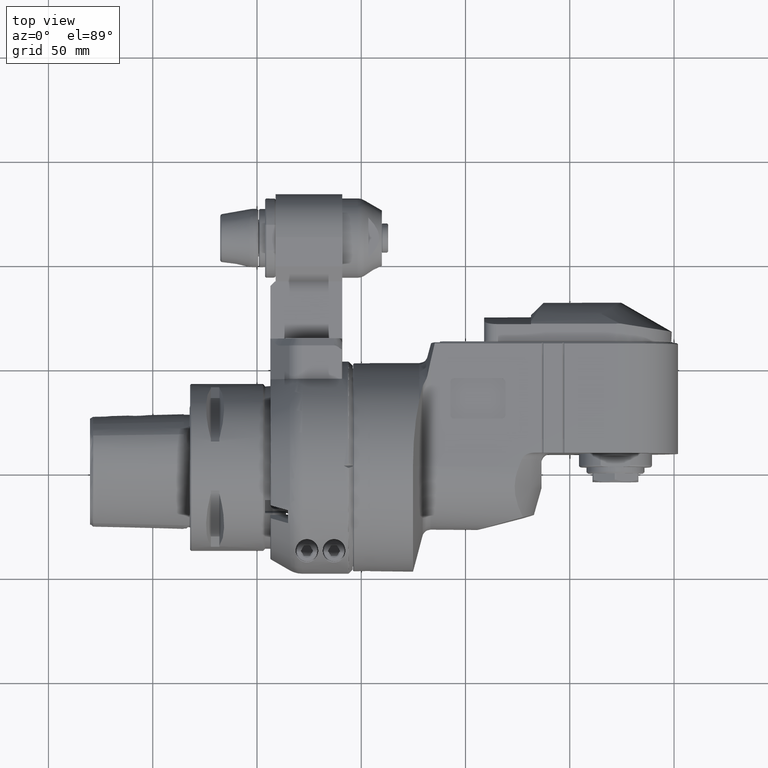
[diagram: clean part render]
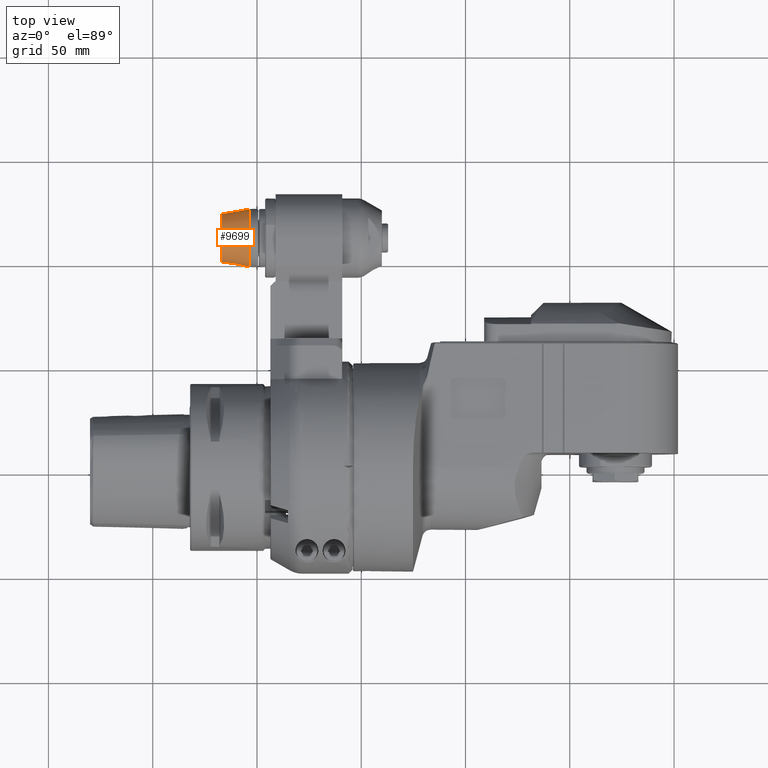
[diagram: same view with one face highlighted and labeled with its STEP entity id]
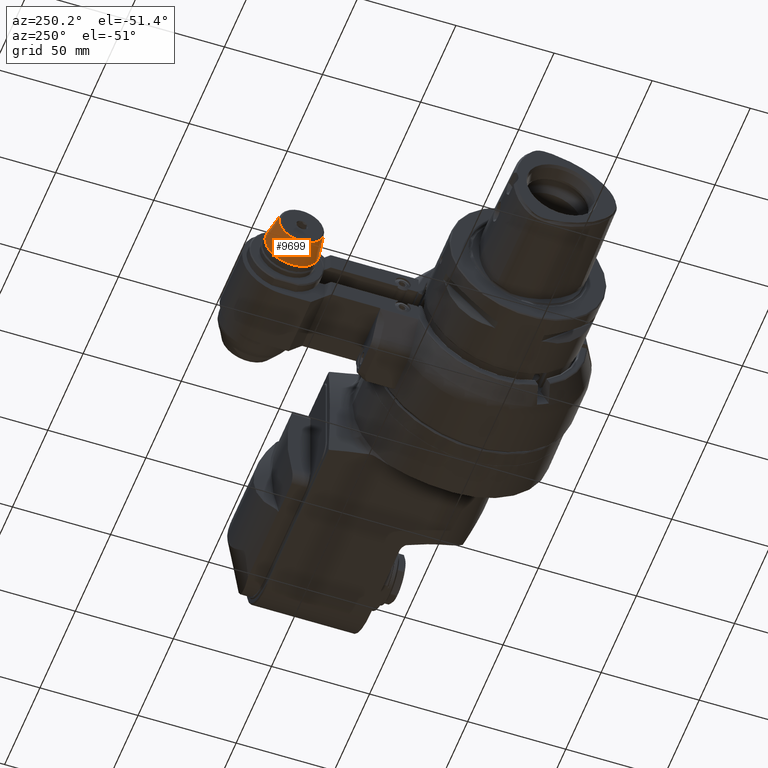
[diagram: same view with one face highlighted and labeled with its STEP entity id]
A machine part, top view. The second image highlights one B-rep face of the part: STEP entity #9699.
A second angle (auxiliary view) of the same face is appended — the face is thin or edge-on in the first view.
In plain terms, the highlighted conical surface has half-angle 10 deg.
Its self-contained STEP definition (entity closure, byte-faithful):
#385=CONICAL_SURFACE('',#10795,12.67444047067,0.174532925199433);
#1076=LINE('',#21362,#1747);
#1747=VECTOR('',#13567,12.67444047067);
#2538=FACE_OUTER_BOUND('',#3190,.T.);
#3190=EDGE_LOOP('',(#8762,#8763,#8764,#8765,#8766,#8767));
#3687=CIRCLE('',#10793,11.50080341121);
#3688=CIRCLE('',#10794,11.50080341121);
#3689=CIRCLE('',#10796,13.84807753012);
#3690=CIRCLE('',#10797,13.84807753012);
#4599=VERTEX_POINT('',#21353);
#4600=VERTEX_POINT('',#21355);
#4601=VERTEX_POINT('',#21359);
#4602=VERTEX_POINT('',#21360);
#5993=EDGE_CURVE('',#4599,#4600,#3687,.T.);
#5994=EDGE_CURVE('',#4600,#4599,#3688,.T.);
#5995=EDGE_CURVE('',#4601,#4602,#3689,.T.);
#5996=EDGE_CURVE('',#4602,#4600,#1076,.T.);
#5997=EDGE_CURVE('',#4602,#4601,#3690,.T.);
#8762=ORIENTED_EDGE('',*,*,#5995,.T.);
#8763=ORIENTED_EDGE('',*,*,#5996,.T.);
#8764=ORIENTED_EDGE('',*,*,#5993,.F.);
#8765=ORIENTED_EDGE('',*,*,#5994,.F.);
#8766=ORIENTED_EDGE('',*,*,#5996,.F.);
#8767=ORIENTED_EDGE('',*,*,#5997,.T.);
#9699=ADVANCED_FACE('',(#2538),#385,.T.);
#10793=AXIS2_PLACEMENT_3D('',#21356,#13559,#13560);
#10794=AXIS2_PLACEMENT_3D('',#21357,#13561,#13562);
#10795=AXIS2_PLACEMENT_3D('',#21358,#13563,#13564);
#10796=AXIS2_PLACEMENT_3D('',#21361,#13565,#13566);
#10797=AXIS2_PLACEMENT_3D('',#21363,#13568,#13569);
#13559=DIRECTION('center_axis',(-1.,0.,0.));
#13560=DIRECTION('ref_axis',(0.,1.,0.));
#13561=DIRECTION('center_axis',(-1.,0.,0.));
#13562=DIRECTION('ref_axis',(0.,1.,0.));
#13563=DIRECTION('center_axis',(1.,0.,0.));
#13564=DIRECTION('ref_axis',(0.,-1.,0.));
#13565=DIRECTION('center_axis',(-1.,0.,0.));
#13566=DIRECTION('ref_axis',(0.,-1.,0.));
#13567=DIRECTION('',(-0.984807753012208,-0.17364817766693,-2.12657684957577E-17));
#13568=DIRECTION('center_axis',(-1.,0.,0.));
#13569=DIRECTION('ref_axis',(0.,1.,0.));
#21353=CARTESIAN_POINT('',(-188.6736481777,98.4994185763703,-0.0714564326251059));
#21355=CARTESIAN_POINT('',(-188.673648177698,121.500803411201,1.40844220851498E-15));
#21356=CARTESIAN_POINT('Origin',(-188.6736481777,110.,0.));
#21357=CARTESIAN_POINT('Origin',(-188.6736481777,110.,0.));
#21358=CARTESIAN_POINT('Origin',(-182.0176216595,110.,0.));
#21359=CARTESIAN_POINT('',(-175.3615951414,96.1519224698811,-1.86666662266033E-11));
#21360=CARTESIAN_POINT('',(-175.361595141401,123.848077530119,1.86655452309379E-11));
#21361=CARTESIAN_POINT('Origin',(-175.3615951414,110.,0.));
#21362=CARTESIAN_POINT('',(-182.0176216595,122.67444047067,1.55217129533897E-15));
#21363=CARTESIAN_POINT('Origin',(-175.3615951414,110.,0.));